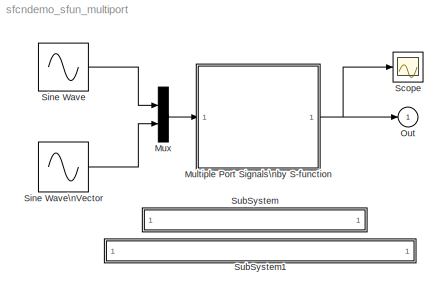
MODEL sfcndemo_sfun_multiport
KIND model
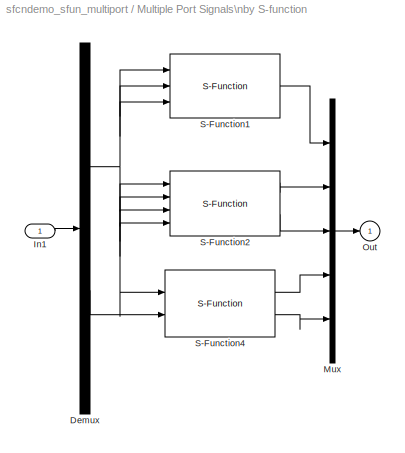
BLOCK [SubSystem] Multiple Port Signals\nby S-function
  MaskDisplay = disp('S-Function');\nplot([0 NaN 1 2 3 4 NaN 6 7 8 9 NaN 10 NaN 1 2 3 4 NaN 6 7 8 9 NaN 1 2],[0 NaN 1 1 1 2 NaN 3 3.5 3.5 3.5 NaN 5 NaN 4 4 4 3 NaN 2 1.5 1.5 1.5 NaN 2.5 2.5])
  MaskIconFrame = on
  MaskIconOpaque = on
  MaskIconRotate = none
  MaskIconUnits = autoscale
  MinAlgLoopOccurrences = off
  Ports = [1, 1]
  PropExecContextAcrossSSBoundary = on
  RTWSystemCode = Auto
  TreatAsAtomicUnit = off
BLOCK [Demux] Multiple Port Signals\nby S-function/Demux
  Outputs = [1 3]
  Ports = [1, 2]
BLOCK [Inport] Multiple Port Signals\nby S-function/In1
  IconDisplay = Port number
  LatchInput = off
  Port = 1
  PortDimensions = 4
BLOCK [Mux] Multiple Port Signals\nby S-function/Mux
  DisplayOption = bar
  Inputs = 5
  Ports = [5, 1]
BLOCK [Outport] Multiple Port Signals\nby S-function/Out
  IconDisplay = Port number
  InitialOutput = 0
BLOCK [S-Function] Multiple Port Signals\nby S-function/S-Function1
  AttributesFormatString = SumTimesGain
  FunctionName = sfun_multiport
  MaskCallbackString = ||
  MaskEnableString = on,on,on
  MaskIconFrame = on
  MaskIconOpaque = on
  MaskIconRotate = none
  MaskIconUnits = autoscale
  MaskPromptString = Input port sign|Gain:|Output type
  MaskStyleString = edit,edit,popup(SumTimesGain|SumTimesGainAndAverage)
  MaskTabNameString = ,,
  MaskToolTipString = on,on,on
  MaskTunableValueString = on,on,on
  MaskType = S-function: sfun_multiport
  MaskValueString = +++|4|SumTimesGain
  MaskVarAliasString = ,,
  MaskVariables = signs=&1;gain=@2;output=&3;
  MaskVisibilityString = on,on,on
  Parameters = signs,gain,output
  Ports = [3, 1]
BLOCK [S-Function] Multiple Port Signals\nby S-function/S-Function2
  AttributesFormatString = SumTimesGainAndAverage
  FunctionName = sfun_multiport
  MaskCallbackString = ||
  MaskEnableString = on,on,on
  MaskIconFrame = on
  MaskIconOpaque = on
  MaskIconRotate = none
  MaskIconUnits = autoscale
  MaskPromptString = Input port sign|Gain:|Output type
  MaskStyleString = edit,edit,popup(SumTimesGain|SumTimesGainAndAverage)
  MaskTabNameString = ,,
  MaskToolTipString = on,on,on
  MaskTunableValueString = on,on,on
  MaskType = S-function: sfun_multiport
  MaskValueString = ++++|2|SumTimesGainAndAverage
  MaskVarAliasString = ,,
  MaskVariables = signs=&1;gain=@2;output=&3;
  MaskVisibilityString = on,on,on
  Parameters = signs,gain,output
  Ports = [4, 2]
BLOCK [S-Function] Multiple Port Signals\nby S-function/S-Function4
  AttributesFormatString = SumTimesGainAndAverage(Vector)
  FunctionName = sfun_multiport
  MaskCallbackString = ||
  MaskEnableString = on,on,on
  MaskIconFrame = on
  MaskIconOpaque = on
  MaskIconRotate = none
  MaskIconUnits = autoscale
  MaskPromptString = Input port sign|Gain:|Output type
  MaskStyleString = edit,edit,popup(SumTimesGain|SumTimesGainAndAverage)
  MaskTabNameString = ,,
  MaskToolTipString = on,on,on
  MaskTunableValueString = on,on,on
  MaskType = S-function: sfun_multiport
  MaskValueString = ++|3|SumTimesGainAndAverage
  MaskVarAliasString = ,,
  MaskVariables = signs=&1;gain=@2;output=&3;
  MaskVisibilityString = on,on,on
  Parameters = signs,gain,output
  Ports = [2, 2]
BLOCK [Mux] Mux
  DisplayOption = bar
  Inputs = 2
  Ports = [2, 1]
BLOCK [Outport] Out
  IconDisplay = Port number
  InitialOutput = 0
BLOCK [Scope] Scope
  DataFormat = Array
  NumInputPorts = 1
  Ports = [1]
  TickLabels = on
  TimeRange = 10
  YMax = 15
  YMin = -15
BLOCK [Sin] Sine Wave
  Ports = [0, 1]
  SampleTime = 1
BLOCK [Sin] Sine Wave\nVector
  Amplitude = 1:3
  Ports = [0, 1]
  SampleTime = 1
BLOCK [SubSystem] SubSystem
  MaskDisplay = disp('matlabroot<path>');
  MaskIconFrame = on
  MaskIconOpaque = on
  MaskIconRotate = none
  MaskIconUnits = autoscale
  MinAlgLoopOccurrences = off
  OpenFcn = edit(fullfile(matlabroot,'simulink','src','sfun_multiport.c'))
  Ports = []
  PropExecContextAcrossSSBoundary = on
  RTWSystemCode = Auto
  TreatAsAtomicUnit = off
BLOCK [SubSystem] SubSystem1
  MaskDisplay = disp('matlabroot<path>');
  MaskIconFrame = on
  MaskIconOpaque = on
  MaskIconRotate = none
  MaskIconUnits = autoscale
  MinAlgLoopOccurrences = off
  OpenFcn = edit(fullfile(matlabroot,'toolbox','simulink','blocks','tlc_c','sfun_multiport.tlc'))
  Ports = []
  PropExecContextAcrossSSBoundary = on
  RTWSystemCode = Auto
  TreatAsAtomicUnit = off
NET Multiple Port Signals\nby S-function/Demux:1 -> Multiple Port Signals\nby S-function/S-Function1:1, Multiple Port Signals\nby S-function/S-Function1:2, Multiple Port Signals\nby S-function/S-Function1:3, Multiple Port Signals\nby S-function/S-Function2:1, Multiple Port Signals\nby S-function/S-Function2:2, Multiple Port Signals\nby S-function/S-Function2:3, Multiple Port Signals\nby S-function/S-Function2:4, Multiple Port Signals\nby S-function/S-Function4:1
LINE Multiple Port Signals\nby S-function/Demux:2 -> Multiple Port Signals\nby S-function/S-Function4:2
LINE Multiple Port Signals\nby S-function/In1:1 -> Multiple Port Signals\nby S-function/Demux:1
LINE Multiple Port Signals\nby S-function/Mux:1 -> Multiple Port Signals\nby S-function/Out:1
LINE Multiple Port Signals\nby S-function/S-Function1:1 -> Multiple Port Signals\nby S-function/Mux:1
LINE Multiple Port Signals\nby S-function/S-Function2:1 -> Multiple Port Signals\nby S-function/Mux:2
LINE Multiple Port Signals\nby S-function/S-Function2:2 -> Multiple Port Signals\nby S-function/Mux:3
LINE Multiple Port Signals\nby S-function/S-Function4:1 -> Multiple Port Signals\nby S-function/Mux:4
LINE Multiple Port Signals\nby S-function/S-Function4:2 -> Multiple Port Signals\nby S-function/Mux:5
NET Multiple Port Signals\nby S-function:1 -> Out:1, Scope:1
LINE Mux:1 -> Multiple Port Signals\nby S-function:1
LINE Sine Wave:1 -> Mux:1
LINE Sine Wave\nVector:1 -> Mux:2
note: NET lines group one-source signal fan-out (src -> all destinations, sorted); 1:1 wires keep LINE
note: 2 file-system paths scrubbed to <path> (not preserved elsewhere — flat text is the only slx artifact)
